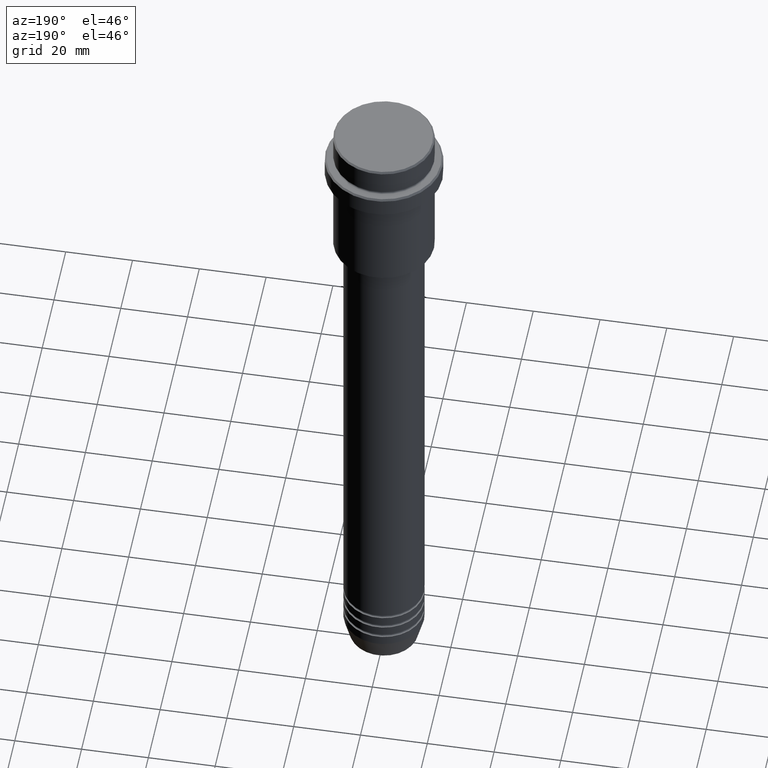
[diagram: clean part render]
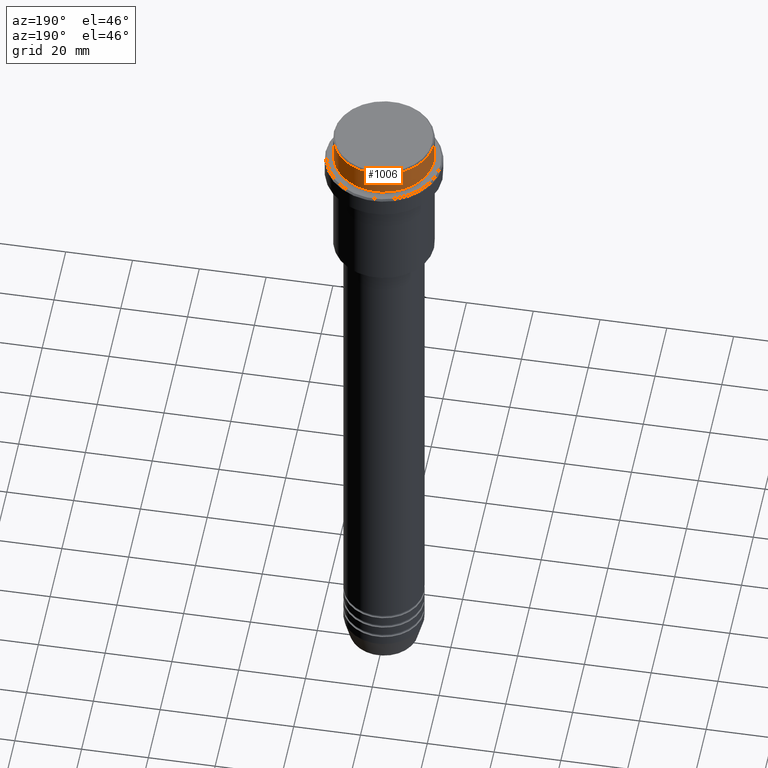
[diagram: same view with one face highlighted and labeled with its STEP entity id]
A machine part, auxiliary view. The second image highlights one B-rep face of the part: STEP entity #1006.
In plain terms, the highlighted cylindrical surface (partial cylindrical patch) has radius 15 mm, axis along (-0, -0, 1).
Its self-contained STEP definition (entity closure, byte-faithful):
#34 = ORIENTED_EDGE ( 'NONE', *, *, #950, .T. ) ;
#88 = CARTESIAN_POINT ( 'NONE',  ( 15.00000000000000000, 0.000000000000000000, 0.000000000000000000 ) ) ;
#101 = ORIENTED_EDGE ( 'NONE', *, *, #1161, .T. ) ;
#104 = EDGE_CURVE ( 'NONE', #1048, #1229, #1034, .T. ) ;
#151 = VERTEX_POINT ( 'NONE', #1072 ) ;
#188 = DIRECTION ( 'NONE',  ( 1.000000000000000000, 0.000000000000000000, 0.000000000000000000 ) ) ;
#286 = VECTOR ( 'NONE', #1105, 1000.000000000000000 ) ;
#294 = CARTESIAN_POINT ( 'NONE',  ( 0.000000000000000000, 0.000000000000000000, -7.999999999999998224 ) ) ;
#307 = CIRCLE ( 'NONE', #399, 15.00000000000000000 ) ;
#355 = CARTESIAN_POINT ( 'NONE',  ( 0.000000000000000000, 0.000000000000000000, -0.5000000000000108802 ) ) ;
#395 = DIRECTION ( 'NONE',  ( -0.000000000000000000, -0.000000000000000000, 1.000000000000000000 ) ) ;
#399 = AXIS2_PLACEMENT_3D ( 'NONE', #294, #1075, #1172 ) ;
#436 = DIRECTION ( 'NONE',  ( 0.000000000000000000, 0.000000000000000000, -1.000000000000000000 ) ) ;
#470 = EDGE_LOOP ( 'NONE', ( #34, #101, #895, #759 ) ) ;
#487 = VECTOR ( 'NONE', #395, 1000.000000000000000 ) ;
#509 = CYLINDRICAL_SURFACE ( 'NONE', #1291, 15.00000000000000000 ) ;
#668 = CIRCLE ( 'NONE', #1238, 15.00000000000000000 ) ;
#669 = CARTESIAN_POINT ( 'NONE',  ( -15.00000000000000000, 1.836970198721029589E-15, -7.999999999999998224 ) ) ;
#705 = CARTESIAN_POINT ( 'NONE',  ( 15.00000000000000000, 0.000000000000000000, -0.5000000000000108802 ) ) ;
#723 = EDGE_CURVE ( 'NONE', #151, #1229, #668, .T. ) ;
#759 = ORIENTED_EDGE ( 'NONE', *, *, #104, .F. ) ;
#776 = CARTESIAN_POINT ( 'NONE',  ( -15.00000000000000000, 1.836970198721029589E-15, 0.000000000000000000 ) ) ;
#840 = CARTESIAN_POINT ( 'NONE',  ( 15.00000000000000000, 0.000000000000000000, -7.999999999999998224 ) ) ;
#895 = ORIENTED_EDGE ( 'NONE', *, *, #723, .T. ) ;
#950 = EDGE_CURVE ( 'NONE', #1048, #1118, #307, .T. ) ;
#973 = DIRECTION ( 'NONE',  ( -0.000000000000000000, -0.000000000000000000, 1.000000000000000000 ) ) ;
#1006 = ADVANCED_FACE ( 'NONE', ( #1180 ), #509, .T. ) ;
#1034 = LINE ( 'NONE', #88, #487 ) ;
#1048 = VERTEX_POINT ( 'NONE', #840 ) ;
#1072 = CARTESIAN_POINT ( 'NONE',  ( -15.00000000000000000, 1.836970198721029589E-15, -0.5000000000000108802 ) ) ;
#1075 = DIRECTION ( 'NONE',  ( -0.000000000000000000, -0.000000000000000000, 1.000000000000000000 ) ) ;
#1105 = DIRECTION ( 'NONE',  ( -0.000000000000000000, -0.000000000000000000, 1.000000000000000000 ) ) ;
#1118 = VERTEX_POINT ( 'NONE', #669 ) ;
#1161 = EDGE_CURVE ( 'NONE', #1118, #151, #1319, .T. ) ;
#1162 = CARTESIAN_POINT ( 'NONE',  ( 0.000000000000000000, 0.000000000000000000, 0.000000000000000000 ) ) ;
#1172 = DIRECTION ( 'NONE',  ( 1.000000000000000000, 0.000000000000000000, 0.000000000000000000 ) ) ;
#1180 = FACE_OUTER_BOUND ( 'NONE', #470, .T. ) ;
#1229 = VERTEX_POINT ( 'NONE', #705 ) ;
#1238 = AXIS2_PLACEMENT_3D ( 'NONE', #355, #436, #1311 ) ;
#1291 = AXIS2_PLACEMENT_3D ( 'NONE', #1162, #973, #188 ) ;
#1311 = DIRECTION ( 'NONE',  ( 1.000000000000000000, 0.000000000000000000, 0.000000000000000000 ) ) ;
#1319 = LINE ( 'NONE', #776, #286 ) ;